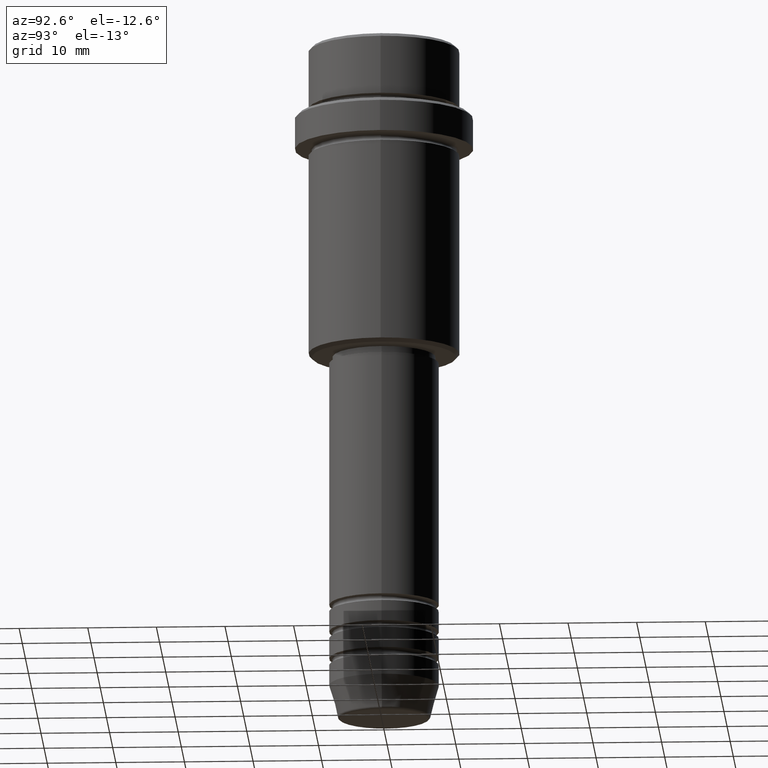
[diagram: clean part render]
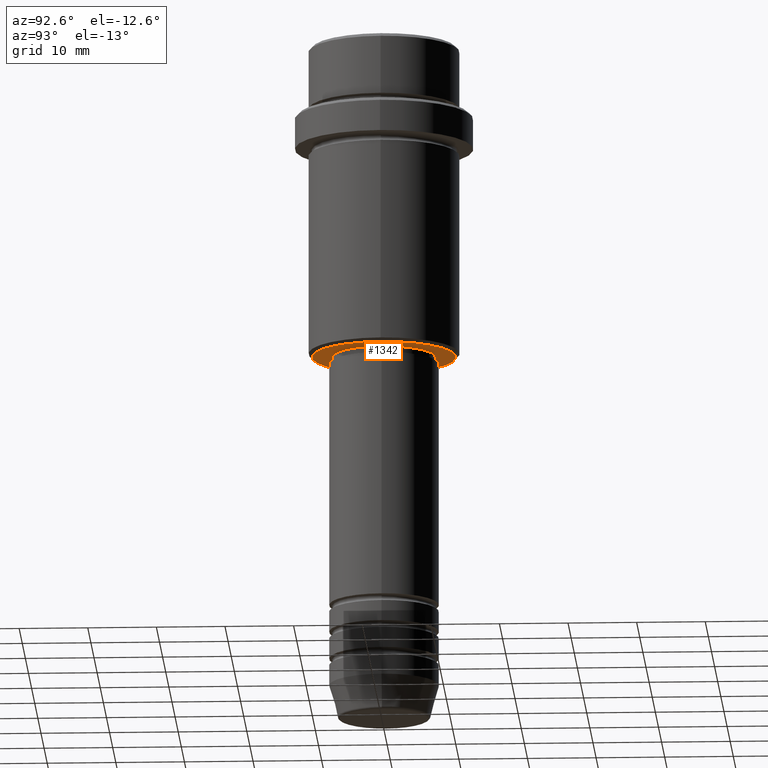
[diagram: same view with one face highlighted and labeled with its STEP entity id]
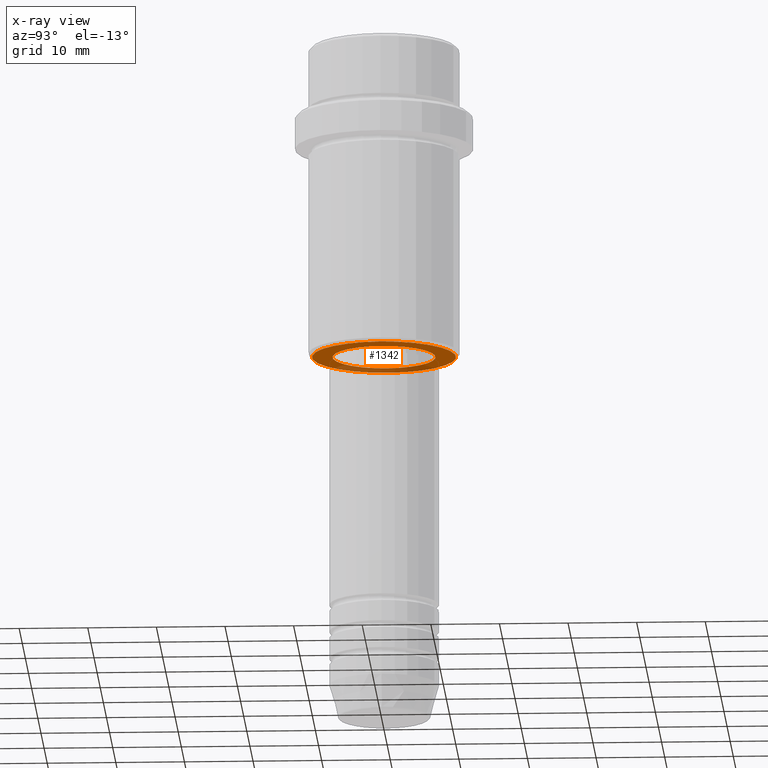
[diagram: x-ray of the same camera — body ghosted, the highlighted face saturated]
A machine part, auxiliary view. The second image highlights one B-rep face of the part: STEP entity #1342.
The next image is the same camera in x-ray: the body ghosted, the highlighted face saturated — about 25% of this face is hidden behind the body in this view.
In plain terms, the highlighted planar face has unit normal (0, 0, -1).
Its self-contained STEP definition (entity closure, byte-faithful):
#35 = FACE_BOUND ( 'NONE', #445, .T. ) ;
#73 = CIRCLE ( 'NONE', #741, 10.50000000000002309 ) ;
#144 = DIRECTION ( 'NONE',  ( -1.000000000000000000, 0.000000000000000000, 0.000000000000000000 ) ) ;
#173 = CARTESIAN_POINT ( 'NONE',  ( 0.000000000000000000, 11.00000000000000355, -46.00000000000000000 ) ) ;
#180 = CARTESIAN_POINT ( 'NONE',  ( 0.000000000000000000, 0.000000000000000000, -46.00000000000000000 ) ) ;
#181 = ORIENTED_EDGE ( 'NONE', *, *, #1223, .T. ) ;
#184 = CIRCLE ( 'NONE', #256, 7.499999999999963585 ) ;
#200 = VERTEX_POINT ( 'NONE', #764 ) ;
#256 = AXIS2_PLACEMENT_3D ( 'NONE', #755, #1184, #1275 ) ;
#302 = PLANE ( 'NONE',  #385 ) ;
#315 = AXIS2_PLACEMENT_3D ( 'NONE', #1007, #691, #816 ) ;
#373 = EDGE_CURVE ( 'NONE', #885, #781, #184, .T. ) ;
#385 = AXIS2_PLACEMENT_3D ( 'NONE', #173, #527, #939 ) ;
#445 = EDGE_LOOP ( 'NONE', ( #694, #1043 ) ) ;
#449 = VERTEX_POINT ( 'NONE', #1097 ) ;
#526 = CARTESIAN_POINT ( 'NONE',  ( -7.499999999999963585, 9.184850993605104557E-16, -46.00000000000000000 ) ) ;
#527 = DIRECTION ( 'NONE',  ( 0.000000000000000000, 0.000000000000000000, -1.000000000000000000 ) ) ;
#635 = EDGE_CURVE ( 'NONE', #449, #200, #788, .T. ) ;
#678 = EDGE_LOOP ( 'NONE', ( #181, #1273 ) ) ;
#691 = DIRECTION ( 'NONE',  ( 0.000000000000000000, 0.000000000000000000, -1.000000000000000000 ) ) ;
#694 = ORIENTED_EDGE ( 'NONE', *, *, #373, .T. ) ;
#713 = DIRECTION ( 'NONE',  ( -0.000000000000000000, -0.000000000000000000, 1.000000000000000000 ) ) ;
#741 = AXIS2_PLACEMENT_3D ( 'NONE', #1110, #1206, #144 ) ;
#755 = CARTESIAN_POINT ( 'NONE',  ( 0.000000000000000000, 0.000000000000000000, -46.00000000000000000 ) ) ;
#764 = CARTESIAN_POINT ( 'NONE',  ( 10.50000000000002309, 0.000000000000000000, -46.00000000000000000 ) ) ;
#781 = VERTEX_POINT ( 'NONE', #526 ) ;
#788 = CIRCLE ( 'NONE', #315, 10.50000000000002309 ) ;
#803 = EDGE_CURVE ( 'NONE', #781, #885, #807, .T. ) ;
#807 = CIRCLE ( 'NONE', #1326, 7.499999999999963585 ) ;
#816 = DIRECTION ( 'NONE',  ( -1.000000000000000000, 0.000000000000000000, 0.000000000000000000 ) ) ;
#885 = VERTEX_POINT ( 'NONE', #1132 ) ;
#939 = DIRECTION ( 'NONE',  ( -1.000000000000000000, 0.000000000000000000, -0.000000000000000000 ) ) ;
#1007 = CARTESIAN_POINT ( 'NONE',  ( 0.000000000000000000, 0.000000000000000000, -46.00000000000000000 ) ) ;
#1043 = ORIENTED_EDGE ( 'NONE', *, *, #803, .T. ) ;
#1097 = CARTESIAN_POINT ( 'NONE',  ( -10.50000000000002309, 1.316495309083405209E-15, -46.00000000000000000 ) ) ;
#1110 = CARTESIAN_POINT ( 'NONE',  ( 0.000000000000000000, 0.000000000000000000, -46.00000000000000000 ) ) ;
#1132 = CARTESIAN_POINT ( 'NONE',  ( 7.499999999999963585, 0.000000000000000000, -46.00000000000000000 ) ) ;
#1148 = FACE_OUTER_BOUND ( 'NONE', #678, .T. ) ;
#1184 = DIRECTION ( 'NONE',  ( -0.000000000000000000, -0.000000000000000000, 1.000000000000000000 ) ) ;
#1206 = DIRECTION ( 'NONE',  ( 0.000000000000000000, 0.000000000000000000, -1.000000000000000000 ) ) ;
#1223 = EDGE_CURVE ( 'NONE', #200, #449, #73, .T. ) ;
#1273 = ORIENTED_EDGE ( 'NONE', *, *, #635, .T. ) ;
#1275 = DIRECTION ( 'NONE',  ( 1.000000000000000000, 0.000000000000000000, 0.000000000000000000 ) ) ;
#1326 = AXIS2_PLACEMENT_3D ( 'NONE', #180, #713, #1360 ) ;
#1342 = ADVANCED_FACE ( 'NONE', ( #1148, #35 ), #302, .T. ) ;
#1360 = DIRECTION ( 'NONE',  ( 1.000000000000000000, 0.000000000000000000, 0.000000000000000000 ) ) ;